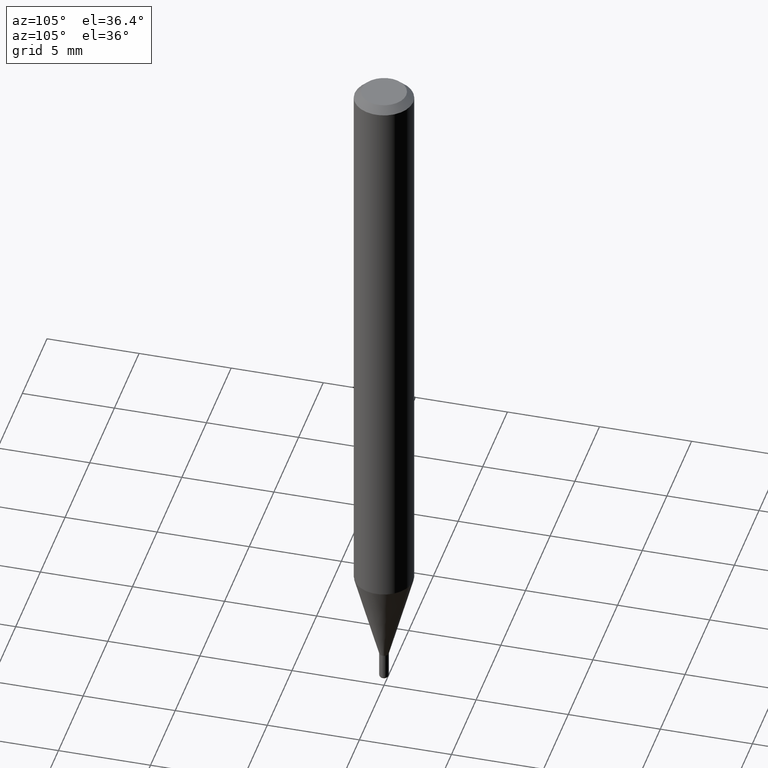
[diagram: clean part render]
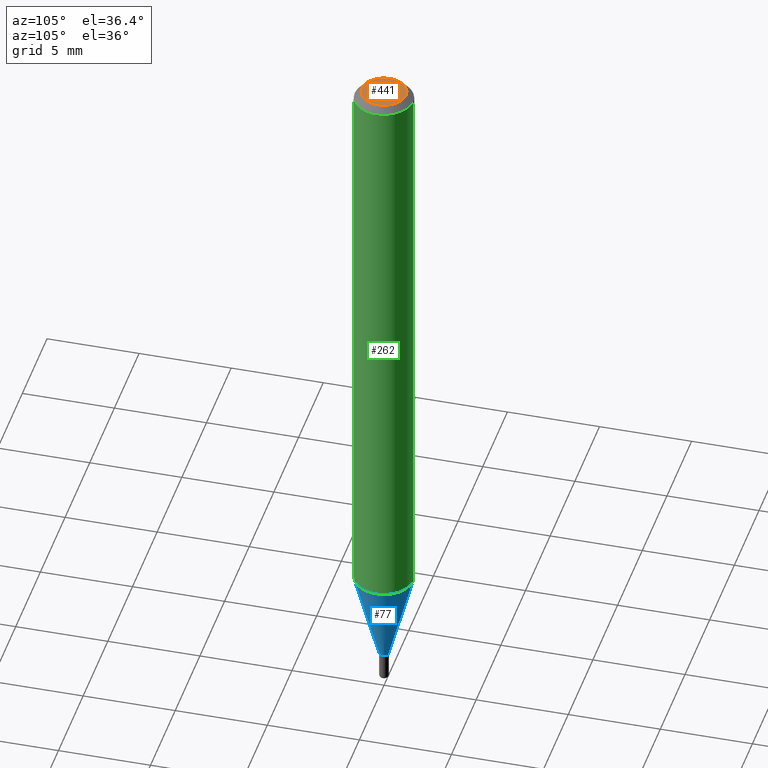
[diagram: same view with three faces highlighted in distinct colors, each labeled with its STEP entity id]
A machine part, auxiliary view with three faces highlighted in distinct colors.
Their STEP definitions:

[orange] entity #441 — the highlighted planar face has unit normal (0, -0, -1).
#49 = FACE_OUTER_BOUND ( 'NONE', #134, .T. ) ;
#67 = AXIS2_PLACEMENT_3D ( 'NONE', #331, #287, #400 ) ;
#83 = PLANE ( 'NONE',  #67 ) ;
#126 = VERTEX_POINT ( 'NONE', #419 ) ;
#129 = CIRCLE ( 'NONE', #274, 0.04749999999999999362 ) ;
#134 = EDGE_LOOP ( 'NONE', ( #518, #211 ) ) ;
#198 = CARTESIAN_POINT ( 'NONE',  ( 6.680207437975457649E-45, -9.538350727164955580E-31, -2.731779647750730813E-16 ) ) ;
#211 = ORIENTED_EDGE ( 'NONE', *, *, #311, .T. ) ;
#213 = AXIS2_PLACEMENT_3D ( 'NONE', #198, #354, #512 ) ;
#237 = VERTEX_POINT ( 'NONE', #474 ) ;
#274 = AXIS2_PLACEMENT_3D ( 'NONE', #367, #410, #278 ) ;
#278 = DIRECTION ( 'NONE',  ( -6.982962677686266711E-15, -1.000000000000000000, 3.491625224976898575E-15 ) ) ;
#287 = DIRECTION ( 'NONE',  ( 2.445368331034953437E-29, -3.491625224976897786E-15, -1.000000000000000000 ) ) ;
#311 = EDGE_CURVE ( 'NONE', #237, #126, #461, .T. ) ;
#331 = CARTESIAN_POINT ( 'NONE',  ( 3.316907271900976096E-16, 0.04749999999999999362, -3.024411805739391776E-16 ) ) ;
#354 = DIRECTION ( 'NONE',  ( -2.445368331034953437E-29, 3.491625224976898181E-15, 1.000000000000000000 ) ) ;
#367 = CARTESIAN_POINT ( 'NONE',  ( 6.680207437975457649E-45, -9.538350727164955580E-31, -2.731779647750730813E-16 ) ) ;
#378 = EDGE_CURVE ( 'NONE', #126, #237, #129, .T. ) ;
#400 = DIRECTION ( 'NONE',  ( 6.982962677686265922E-15, 1.000000000000000000, -3.491625224976897786E-15 ) ) ;
#410 = DIRECTION ( 'NONE',  ( -2.445368331034953437E-29, 3.491625224976898181E-15, 1.000000000000000000 ) ) ;
#419 = CARTESIAN_POINT ( 'NONE',  ( 3.840629472727447874E-16, 0.04749999999999999362, -4.390301629614757676E-16 ) ) ;
#441 = ADVANCED_FACE ( 'NONE', ( #49 ), #83, .F. ) ;
#461 = CIRCLE ( 'NONE', #213, 0.04749999999999999362 ) ;
#474 = CARTESIAN_POINT ( 'NONE',  ( -3.773273898774340269E-16, -0.04749999999999999362, -1.073257665886703951E-16 ) ) ;
#512 = DIRECTION ( 'NONE',  ( -6.982962677686266711E-15, -1.000000000000000000, 3.491625224976898575E-15 ) ) ;
#518 = ORIENTED_EDGE ( 'NONE', *, *, #378, .T. ) ;

[blue] entity #77 — the highlighted conical surface has half-angle 15 deg.
#9 = CARTESIAN_POINT ( 'NONE',  ( 3.042202856821611615E-29, -4.343816880085084386E-15, -1.244067332602634801 ) ) ;
#28 = CARTESIAN_POINT ( 'NONE',  ( 3.521330396690333980E-29, -5.027940323966735147E-15, -1.440000000000000391 ) ) ;
#31 = DIRECTION ( 'NONE',  ( -2.445368331034953437E-29, 3.491625224976898181E-15, 1.000000000000000000 ) ) ;
#36 = ORIENTED_EDGE ( 'NONE', *, *, #447, .T. ) ;
#38 = ORIENTED_EDGE ( 'NONE', *, *, #472, .T. ) ;
#43 = LINE ( 'NONE', #448, #497 ) ;
#56 = CARTESIAN_POINT ( 'NONE',  ( 3.521330396690333980E-29, -5.027940323966735147E-15, -1.440000000000000391 ) ) ;
#77 = ADVANCED_FACE ( 'NONE', ( #343 ), #330, .T. ) ;
#84 = CARTESIAN_POINT ( 'NONE',  ( -6.982962677682815691E-17, -0.01000000000000513152, -1.440000000000000391 ) ) ;
#91 = AXIS2_PLACEMENT_3D ( 'NONE', #56, #143, #377 ) ;
#143 = DIRECTION ( 'NONE',  ( -2.445368331034953437E-29, 3.491625224976898181E-15, 1.000000000000000000 ) ) ;
#168 = EDGE_CURVE ( 'NONE', #320, #316, #517, .T. ) ;
#172 = CARTESIAN_POINT ( 'NONE',  ( -4.364351673553612490E-16, -0.06250000000000435763, -1.244067332602634579 ) ) ;
#203 = CARTESIAN_POINT ( 'NONE',  ( 4.440892098500928887E-16, 0.06249999999999564237, -1.244067332602635023 ) ) ;
#207 = DIRECTION ( 'NONE',  ( 1.839019923739594004E-15, 0.2588190451025240701, 0.9659258262890673130 ) ) ;
#220 = VERTEX_POINT ( 'NONE', #203 ) ;
#230 = CIRCLE ( 'NONE', #91, 0.01000000000000010256 ) ;
#234 = DIRECTION ( 'NONE',  ( -1.807323732225323828E-15, -0.2588190451025172978, 0.9659258262890690894 ) ) ;
#244 = DIRECTION ( 'NONE',  ( -2.445368331034953437E-29, 3.491625224976898181E-15, 1.000000000000000000 ) ) ;
#251 = ORIENTED_EDGE ( 'NONE', *, *, #401, .F. ) ;
#282 = DIRECTION ( 'NONE',  ( -6.982962677686265922E-15, -1.000000000000000000, 4.370956789862821150E-15 ) ) ;
#316 = VERTEX_POINT ( 'NONE', #172 ) ;
#320 = VERTEX_POINT ( 'NONE', #84 ) ;
#330 = CONICAL_SURFACE ( 'NONE', #372, 0.01000000000000010256, 0.2617993877991494078 ) ;
#340 = CARTESIAN_POINT ( 'NONE',  ( 2.575717417130696783E-16, 0.009999999999995073593, -1.440000000000000391 ) ) ;
#343 = FACE_OUTER_BOUND ( 'NONE', #475, .T. ) ;
#352 = CARTESIAN_POINT ( 'NONE',  ( -6.982962677682815691E-17, -0.01000000000000513152, -1.440000000000000391 ) ) ;
#372 = AXIS2_PLACEMENT_3D ( 'NONE', #28, #31, #502 ) ;
#377 = DIRECTION ( 'NONE',  ( -6.982962677686265922E-15, -1.000000000000000000, 0.000000000000000000 ) ) ;
#401 = EDGE_CURVE ( 'NONE', #316, #220, #444, .T. ) ;
#411 = AXIS2_PLACEMENT_3D ( 'NONE', #9, #244, #282 ) ;
#435 = VECTOR ( 'NONE', #234, 39.37007874015748854 ) ;
#444 = CIRCLE ( 'NONE', #411, 0.06250000000000000000 ) ;
#445 = ORIENTED_EDGE ( 'NONE', *, *, #168, .F. ) ;
#447 = EDGE_CURVE ( 'NONE', #516, #220, #43, .T. ) ;
#448 = CARTESIAN_POINT ( 'NONE',  ( 7.105427357604595022E-17, 0.009999999999995073593, -1.440000000000000391 ) ) ;
#472 = EDGE_CURVE ( 'NONE', #320, #516, #230, .T. ) ;
#475 = EDGE_LOOP ( 'NONE', ( #38, #36, #251, #445 ) ) ;
#497 = VECTOR ( 'NONE', #207, 39.37007874015748854 ) ;
#502 = DIRECTION ( 'NONE',  ( -6.982962677686265922E-15, -1.000000000000000000, 0.000000000000000000 ) ) ;
#516 = VERTEX_POINT ( 'NONE', #340 ) ;
#517 = LINE ( 'NONE', #352, #435 ) ;

[green] entity #262 — the highlighted cylindrical surface (edge-blend (fillet) strip) has radius 1.5875 mm, axis along (-0, 0, 1).
#1 = ORIENTED_EDGE ( 'NONE', *, *, #300, .T. ) ;
#9 = CARTESIAN_POINT ( 'NONE',  ( 3.042202856821611615E-29, -4.343816880085084386E-15, -1.244067332602634801 ) ) ;
#30 = CARTESIAN_POINT ( 'NONE',  ( 4.440892098500625669E-16, 0.06250000000000000000, -2.182265765610561363E-16 ) ) ;
#45 = VECTOR ( 'NONE', #452, 39.37007874015748143 ) ;
#78 = AXIS2_PLACEMENT_3D ( 'NONE', #306, #114, #231 ) ;
#93 = EDGE_LOOP ( 'NONE', ( #482, #1, #363, #277 ) ) ;
#95 = CARTESIAN_POINT ( 'NONE',  ( -4.364351673553916201E-16, -0.06250000000000000000, 2.182265765610561363E-16 ) ) ;
#114 = DIRECTION ( 'NONE',  ( -2.445368331034953437E-29, 3.491625224976898181E-15, 1.000000000000000000 ) ) ;
#115 = VECTOR ( 'NONE', #268, 39.37007874015748143 ) ;
#164 = VERTEX_POINT ( 'NONE', #426 ) ;
#167 = VERTEX_POINT ( 'NONE', #391 ) ;
#172 = CARTESIAN_POINT ( 'NONE',  ( -4.364351673553612490E-16, -0.06250000000000435763, -1.244067332602634579 ) ) ;
#178 = DIRECTION ( 'NONE',  ( -6.982962677686265922E-15, -1.000000000000000000, 3.483106191921935554E-15 ) ) ;
#192 = AXIS2_PLACEMENT_3D ( 'NONE', #246, #364, #178 ) ;
#203 = CARTESIAN_POINT ( 'NONE',  ( 4.440892098500928887E-16, 0.06249999999999564237, -1.244067332602635023 ) ) ;
#220 = VERTEX_POINT ( 'NONE', #203 ) ;
#231 = DIRECTION ( 'NONE',  ( -6.982962677686265922E-15, -1.000000000000000000, 3.491625224976898181E-15 ) ) ;
#244 = DIRECTION ( 'NONE',  ( -2.445368331034953437E-29, 3.491625224976898181E-15, 1.000000000000000000 ) ) ;
#246 = CARTESIAN_POINT ( 'NONE',  ( 3.668052496552491514E-31, -5.237437837465434366E-17, -0.01500000000000024925 ) ) ;
#262 = ADVANCED_FACE ( 'NONE', ( #317 ), #468, .T. ) ;
#268 = DIRECTION ( 'NONE',  ( -2.445368331034953717E-29, 3.491625224976897786E-15, 1.000000000000000000 ) ) ;
#277 = ORIENTED_EDGE ( 'NONE', *, *, #464, .F. ) ;
#282 = DIRECTION ( 'NONE',  ( -6.982962677686265922E-15, -1.000000000000000000, 4.370956789862821150E-15 ) ) ;
#300 = EDGE_CURVE ( 'NONE', #220, #167, #473, .T. ) ;
#306 = CARTESIAN_POINT ( 'NONE',  ( 0.000000000000000000, 0.000000000000000000, 0.000000000000000000 ) ) ;
#316 = VERTEX_POINT ( 'NONE', #172 ) ;
#317 = FACE_OUTER_BOUND ( 'NONE', #93, .T. ) ;
#337 = LINE ( 'NONE', #95, #45 ) ;
#363 = ORIENTED_EDGE ( 'NONE', *, *, #409, .F. ) ;
#364 = DIRECTION ( 'NONE',  ( -2.445368331034953437E-29, 3.491625224976898181E-15, 1.000000000000000000 ) ) ;
#391 = CARTESIAN_POINT ( 'NONE',  ( 4.440892098500932831E-16, 0.06249999999999995143, -0.01500000000000046782 ) ) ;
#401 = EDGE_CURVE ( 'NONE', #316, #220, #444, .T. ) ;
#409 = EDGE_CURVE ( 'NONE', #164, #167, #469, .T. ) ;
#411 = AXIS2_PLACEMENT_3D ( 'NONE', #9, #244, #282 ) ;
#426 = CARTESIAN_POINT ( 'NONE',  ( -4.364351673553912750E-16, -0.06250000000000005551, -0.01500000000000003240 ) ) ;
#444 = CIRCLE ( 'NONE', #411, 0.06250000000000000000 ) ;
#452 = DIRECTION ( 'NONE',  ( -2.445368331034953717E-29, 3.491625224976897786E-15, 1.000000000000000000 ) ) ;
#464 = EDGE_CURVE ( 'NONE', #316, #164, #337, .T. ) ;
#468 = CYLINDRICAL_SURFACE ( 'NONE', #78, 0.06250000000000000000 ) ;
#469 = CIRCLE ( 'NONE', #192, 0.06250000000000000000 ) ;
#473 = LINE ( 'NONE', #30, #115 ) ;
#482 = ORIENTED_EDGE ( 'NONE', *, *, #401, .T. ) ;